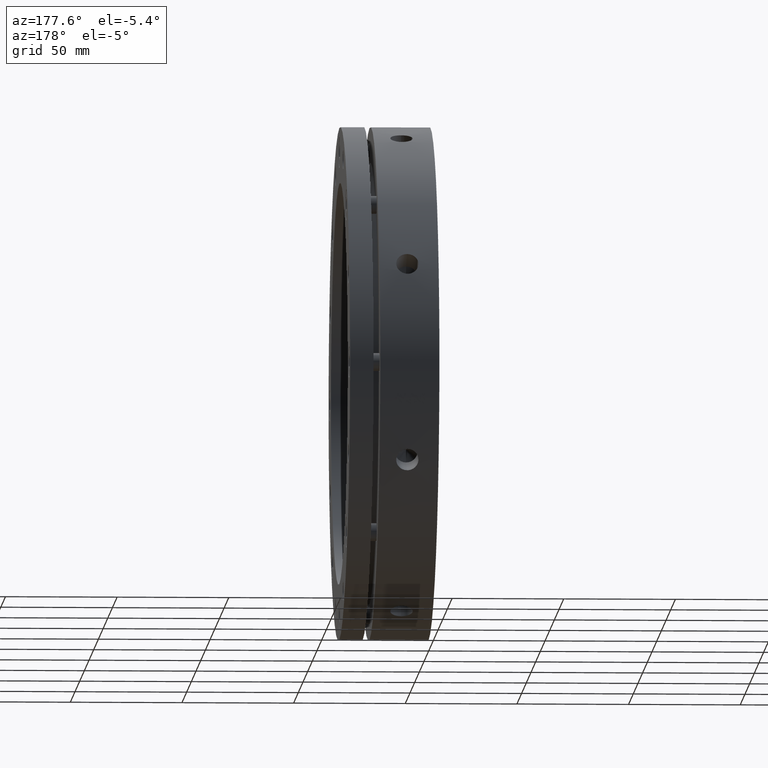
[diagram: clean part render]
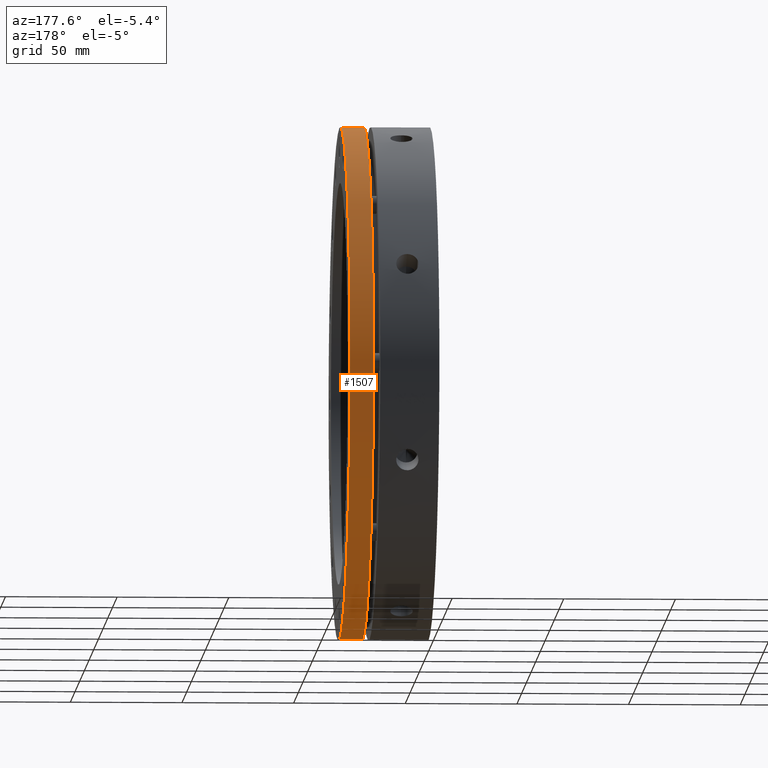
[diagram: same view with one face highlighted and labeled with its STEP entity id]
A machine part, auxiliary view. The second image highlights one B-rep face of the part: STEP entity #1507.
In plain terms, the highlighted cylindrical surface (partial cylindrical patch) has radius 115 mm, axis along (1, 0, 0).
Its self-contained STEP definition (entity closure, byte-faithful):
#1 = CIRCLE ( 'NONE', #3944, 115.0000000000000000 ) ;
#4 = VECTOR ( 'NONE', #3185, 1000.000000000000000 ) ;
#15 = LINE ( 'NONE', #3186, #4 ) ;
#18 = CIRCLE ( 'NONE', #3945, 115.0000000000000000 ) ;
#21 = VECTOR ( 'NONE', #3181, 1000.000000000000000 ) ;
#30 = LINE ( 'NONE', #3187, #21 ) ;
#620 = DIRECTION ( 'NONE',  ( 0.0000000000000000000, 0.0000000000000000000, -1.000000000000000000 ) ) ;
#622 = DIRECTION ( 'NONE',  ( 1.000000000000000000, 0.0000000000000000000, 0.0000000000000000000 ) ) ;
#624 = CARTESIAN_POINT ( 'NONE',  ( 19.99999999999996800, 0.0000000000000000000, 0.0000000000000000000 ) ) ;
#837 = CARTESIAN_POINT ( 'NONE',  ( 39.99999999999997200, 1.408343819019456100E-014, 115.0000000000000000 ) ) ;
#873 = CARTESIAN_POINT ( 'NONE',  ( 29.49999999999997200, 1.408343819019456100E-014, 115.0000000000000000 ) ) ;
#887 = CARTESIAN_POINT ( 'NONE',  ( 39.99999999999997200, 0.0000000000000000000, -115.0000000000000000 ) ) ;
#888 = CARTESIAN_POINT ( 'NONE',  ( 29.49999999999997200, 0.0000000000000000000, -115.0000000000000000 ) ) ;
#1507 = ADVANCED_FACE ( 'NONE', ( #1718 ), #1680, .T. ) ;
#1680 = CYLINDRICAL_SURFACE ( 'NONE', #5118, 115.0000000000000000 ) ;
#1718 = FACE_OUTER_BOUND ( 'NONE', #3724, .T. ) ;
#3181 = DIRECTION ( 'NONE',  ( 1.000000000000000000, 0.0000000000000000000, 0.0000000000000000000 ) ) ;
#3185 = DIRECTION ( 'NONE',  ( 1.000000000000000000, 0.0000000000000000000, 0.0000000000000000000 ) ) ;
#3186 = CARTESIAN_POINT ( 'NONE',  ( 19.99999999999996800, 0.0000000000000000000, -115.0000000000000000 ) ) ;
#3187 = CARTESIAN_POINT ( 'NONE',  ( 19.99999999999996800, 1.408343819019456100E-014, 115.0000000000000000 ) ) ;
#3188 = CARTESIAN_POINT ( 'NONE',  ( 29.49999999999997200, 0.0000000000000000000, 0.0000000000000000000 ) ) ;
#3189 = DIRECTION ( 'NONE',  ( 1.000000000000000000, 0.0000000000000000000, 0.0000000000000000000 ) ) ;
#3190 = DIRECTION ( 'NONE',  ( 0.0000000000000000000, 0.0000000000000000000, -1.000000000000000000 ) ) ;
#3192 = CARTESIAN_POINT ( 'NONE',  ( 39.99999999999997200, 0.0000000000000000000, 0.0000000000000000000 ) ) ;
#3193 = DIRECTION ( 'NONE',  ( -1.000000000000000000, -0.0000000000000000000, -0.0000000000000000000 ) ) ;
#3194 = DIRECTION ( 'NONE',  ( 0.0000000000000000000, 0.0000000000000000000, -1.000000000000000000 ) ) ;
#3724 = EDGE_LOOP ( 'NONE', ( #4343, #4349, #4350, #4351 ) ) ;
#3944 = AXIS2_PLACEMENT_3D ( 'NONE', #3192, #3193, #3194 ) ;
#3945 = AXIS2_PLACEMENT_3D ( 'NONE', #3188, #3189, #3190 ) ;
#4168 = VERTEX_POINT ( 'NONE', #837 ) ;
#4263 = VERTEX_POINT ( 'NONE', #873 ) ;
#4343 = ORIENTED_EDGE ( 'NONE', *, *, #5837, .T. ) ;
#4348 = VERTEX_POINT ( 'NONE', #888 ) ;
#4349 = ORIENTED_EDGE ( 'NONE', *, *, #5838, .T. ) ;
#4350 = ORIENTED_EDGE ( 'NONE', *, *, #5839, .T. ) ;
#4351 = ORIENTED_EDGE ( 'NONE', *, *, #5840, .F. ) ;
#4356 = VERTEX_POINT ( 'NONE', #887 ) ;
#5118 = AXIS2_PLACEMENT_3D ( 'NONE', #624, #622, #620 ) ;
#5837 = EDGE_CURVE ( 'NONE', #4348, #4263, #18, .T. ) ;
#5838 = EDGE_CURVE ( 'NONE', #4263, #4168, #30, .T. ) ;
#5839 = EDGE_CURVE ( 'NONE', #4168, #4356, #1, .T. ) ;
#5840 = EDGE_CURVE ( 'NONE', #4348, #4356, #15, .T. ) ;